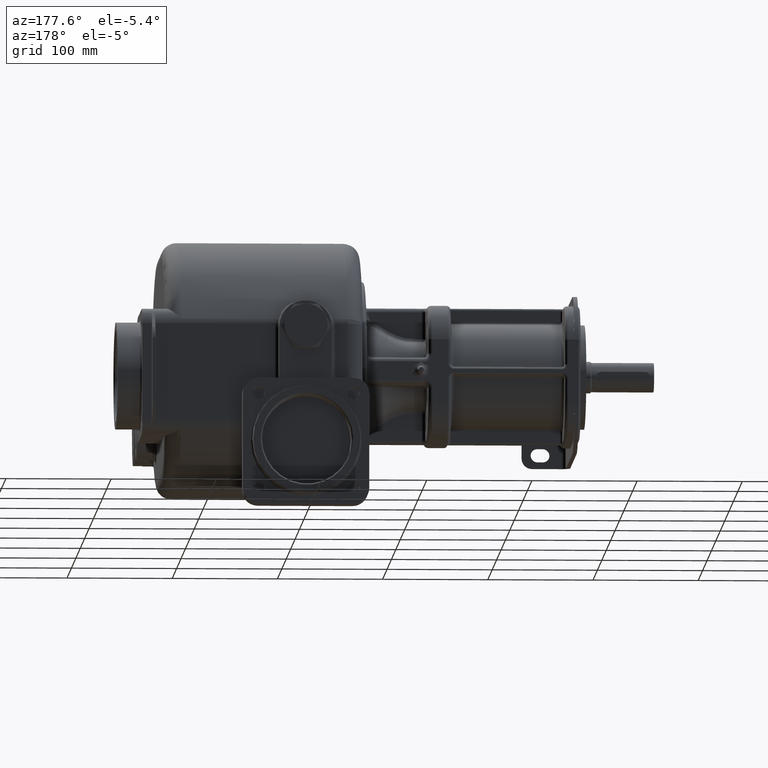
[diagram: clean part render]
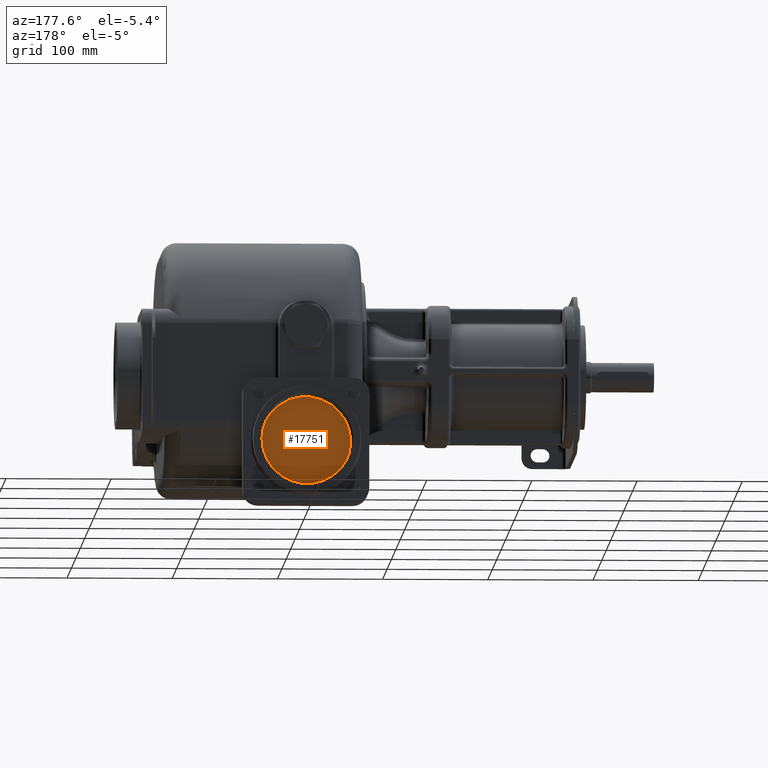
[diagram: same view with one face highlighted and labeled with its STEP entity id]
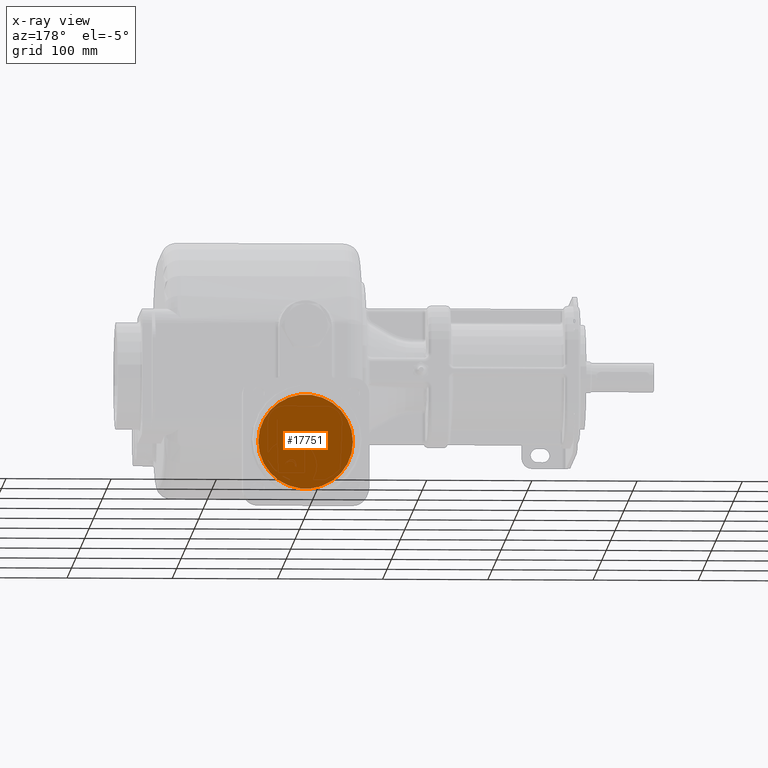
[diagram: x-ray of the same camera — body ghosted, the highlighted face saturated]
A machine part, auxiliary view. The second image highlights one B-rep face of the part: STEP entity #17751.
The next image is the same camera in x-ray: the body ghosted, the highlighted face saturated — about 0% of this face is hidden behind the body in this view.
In plain terms, the highlighted planar face has unit normal (0, -1, 0).
Its self-contained STEP definition (entity closure, byte-faithful):
#540=CARTESIAN_POINT('',(0.E0,3.4E2,-8.3E1));
#541=DIRECTION('',(0.E0,-1.E0,0.E0));
#542=DIRECTION('',(1.E0,0.E0,0.E0));
#543=AXIS2_PLACEMENT_3D('',#540,#541,#542);
#545=CARTESIAN_POINT('',(0.E0,3.4E2,-8.3E1));
#546=DIRECTION('',(0.E0,-1.E0,0.E0));
#547=DIRECTION('',(-1.E0,0.E0,0.E0));
#548=AXIS2_PLACEMENT_3D('',#545,#546,#547);
#15079=CARTESIAN_POINT('',(4.5E1,3.4E2,-8.3E1));
#15080=CARTESIAN_POINT('',(-4.5E1,3.4E2,-8.3E1));
#15081=VERTEX_POINT('',#15079);
#15082=VERTEX_POINT('',#15080);
#17742=CARTESIAN_POINT('',(-5.55E1,3.4E2,0.E0));
#17743=DIRECTION('',(0.E0,-1.E0,0.E0));
#17744=DIRECTION('',(0.E0,0.E0,-1.E0));
#17745=AXIS2_PLACEMENT_3D('',#17742,#17743,#17744);
#17746=PLANE('',#17745);
#17747=ORIENTED_EDGE('',*,*,#17722,.T.);
#17748=ORIENTED_EDGE('',*,*,#17736,.T.);
#17749=EDGE_LOOP('',(#17747,#17748));
#17750=FACE_OUTER_BOUND('',#17749,.F.);
#17751=ADVANCED_FACE('',(#17750),#17746,.F.);
#544=CIRCLE('',#543,4.5E1);
#549=CIRCLE('',#548,4.5E1);
#17722=EDGE_CURVE('',#15081,#15082,#544,.T.);
#17736=EDGE_CURVE('',#15082,#15081,#549,.T.);